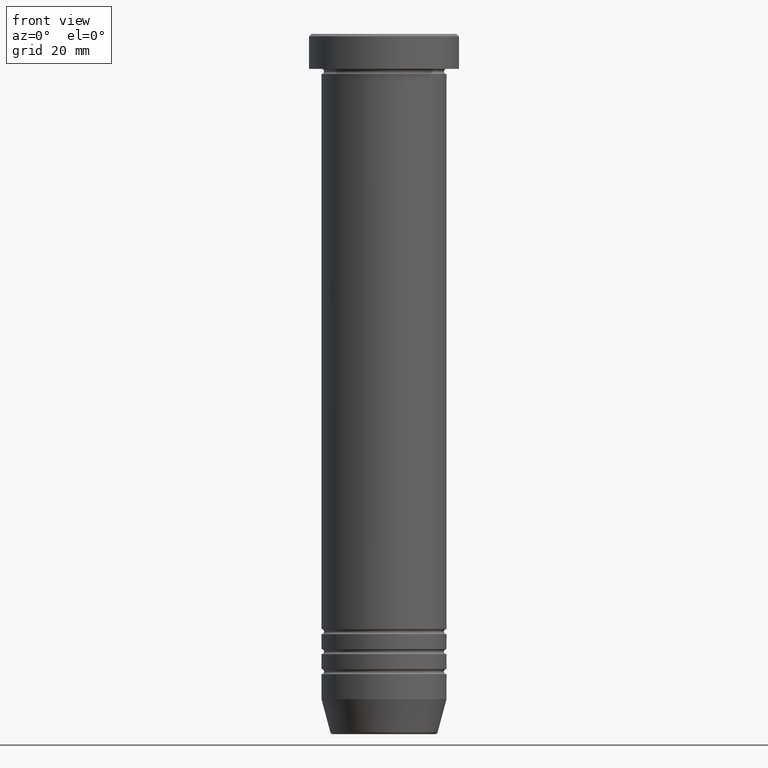
[diagram: clean part render]
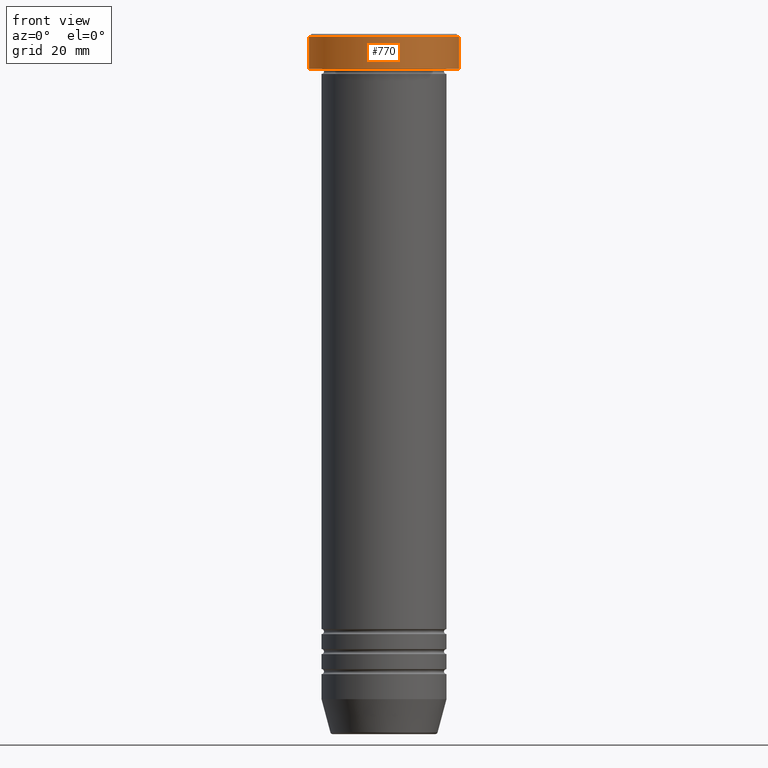
[diagram: same view with one face highlighted and labeled with its STEP entity id]
A machine part, front view. The second image highlights one B-rep face of the part: STEP entity #770.
In plain terms, the highlighted cylindrical surface (partial cylindrical patch) has radius 15 mm, axis along (-0, -0, 1).
Its self-contained STEP definition (entity closure, byte-faithful):
#9 = EDGE_CURVE ( 'NONE', #185, #1032, #967, .T. ) ;
#12 = FACE_OUTER_BOUND ( 'NONE', #474, .T. ) ;
#39 = CIRCLE ( 'NONE', #386, 15.00000000000000000 ) ;
#50 = DIRECTION ( 'NONE',  ( -0.000000000000000000, -0.000000000000000000, 1.000000000000000000 ) ) ;
#77 = DIRECTION ( 'NONE',  ( 1.000000000000000000, 0.000000000000000000, 0.000000000000000000 ) ) ;
#82 = DIRECTION ( 'NONE',  ( 0.000000000000000000, 0.000000000000000000, -1.000000000000000000 ) ) ;
#152 = CIRCLE ( 'NONE', #800, 15.00000000000000000 ) ;
#161 = VECTOR ( 'NONE', #50, 1000.000000000000000 ) ;
#175 = CYLINDRICAL_SURFACE ( 'NONE', #285, 15.00000000000000000 ) ;
#185 = VERTEX_POINT ( 'NONE', #891 ) ;
#191 = CARTESIAN_POINT ( 'NONE',  ( 15.00000000000000000, 0.000000000000000000, -0.5000000000000039968 ) ) ;
#202 = DIRECTION ( 'NONE',  ( 1.000000000000000000, 0.000000000000000000, 0.000000000000000000 ) ) ;
#205 = VECTOR ( 'NONE', #1061, 1000.000000000000000 ) ;
#234 = LINE ( 'NONE', #487, #205 ) ;
#247 = VERTEX_POINT ( 'NONE', #265 ) ;
#255 = DIRECTION ( 'NONE',  ( 1.000000000000000000, 0.000000000000000000, 0.000000000000000000 ) ) ;
#258 = ORIENTED_EDGE ( 'NONE', *, *, #9, .T. ) ;
#265 = CARTESIAN_POINT ( 'NONE',  ( -15.00000000000000000, 1.836970198721029589E-15, -0.5000000000000039968 ) ) ;
#285 = AXIS2_PLACEMENT_3D ( 'NONE', #334, #658, #255 ) ;
#300 = ORIENTED_EDGE ( 'NONE', *, *, #620, .T. ) ;
#319 = CARTESIAN_POINT ( 'NONE',  ( -15.00000000000000000, 1.836970198721029589E-15, -6.999999999999998224 ) ) ;
#334 = CARTESIAN_POINT ( 'NONE',  ( 0.000000000000000000, 0.000000000000000000, 0.000000000000000000 ) ) ;
#346 = ORIENTED_EDGE ( 'NONE', *, *, #413, .T. ) ;
#365 = CARTESIAN_POINT ( 'NONE',  ( 0.000000000000000000, 0.000000000000000000, -6.999999999999998224 ) ) ;
#386 = AXIS2_PLACEMENT_3D ( 'NONE', #365, #1039, #202 ) ;
#413 = EDGE_CURVE ( 'NONE', #601, #185, #39, .T. ) ;
#474 = EDGE_LOOP ( 'NONE', ( #746, #346, #258, #300 ) ) ;
#487 = CARTESIAN_POINT ( 'NONE',  ( -15.00000000000000000, 1.836970198721029589E-15, 0.000000000000000000 ) ) ;
#599 = EDGE_CURVE ( 'NONE', #601, #247, #234, .T. ) ;
#601 = VERTEX_POINT ( 'NONE', #319 ) ;
#620 = EDGE_CURVE ( 'NONE', #1032, #247, #152, .T. ) ;
#658 = DIRECTION ( 'NONE',  ( -0.000000000000000000, -0.000000000000000000, 1.000000000000000000 ) ) ;
#707 = CARTESIAN_POINT ( 'NONE',  ( 15.00000000000000000, 0.000000000000000000, 0.000000000000000000 ) ) ;
#746 = ORIENTED_EDGE ( 'NONE', *, *, #599, .F. ) ;
#770 = ADVANCED_FACE ( 'NONE', ( #12 ), #175, .T. ) ;
#800 = AXIS2_PLACEMENT_3D ( 'NONE', #803, #82, #77 ) ;
#803 = CARTESIAN_POINT ( 'NONE',  ( 0.000000000000000000, 0.000000000000000000, -0.5000000000000039968 ) ) ;
#891 = CARTESIAN_POINT ( 'NONE',  ( 15.00000000000000000, 0.000000000000000000, -6.999999999999998224 ) ) ;
#967 = LINE ( 'NONE', #707, #161 ) ;
#1032 = VERTEX_POINT ( 'NONE', #191 ) ;
#1039 = DIRECTION ( 'NONE',  ( -0.000000000000000000, -0.000000000000000000, 1.000000000000000000 ) ) ;
#1061 = DIRECTION ( 'NONE',  ( -0.000000000000000000, -0.000000000000000000, 1.000000000000000000 ) ) ;